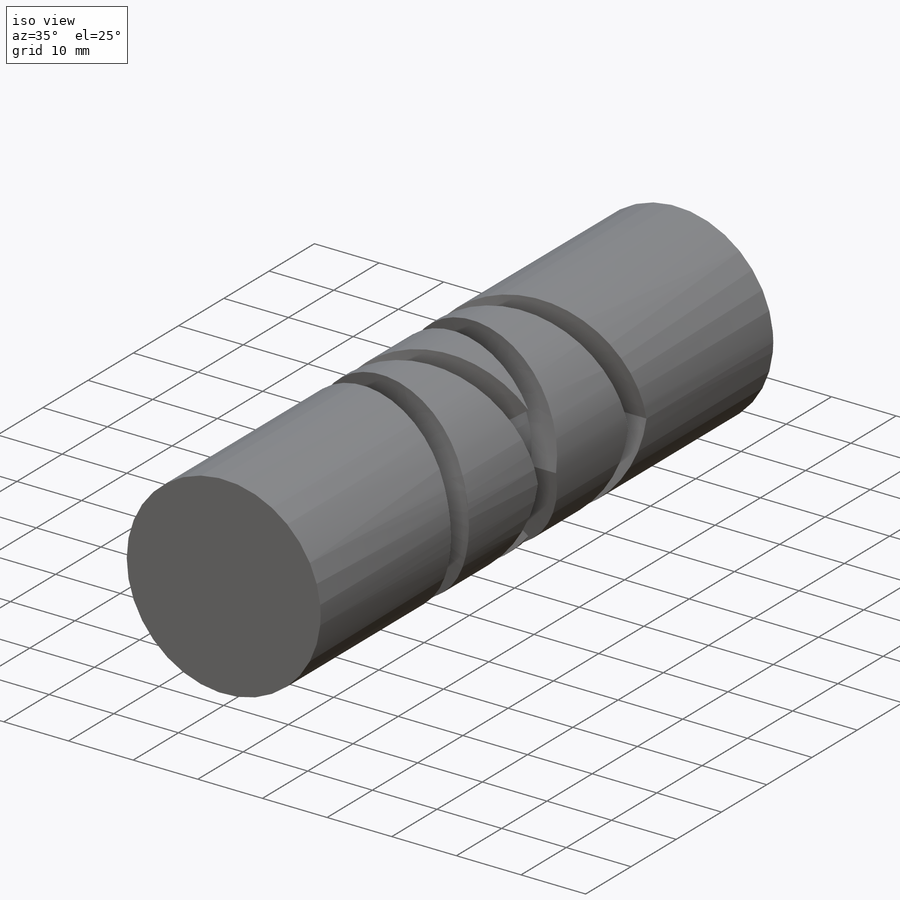
[diagram: iso view]
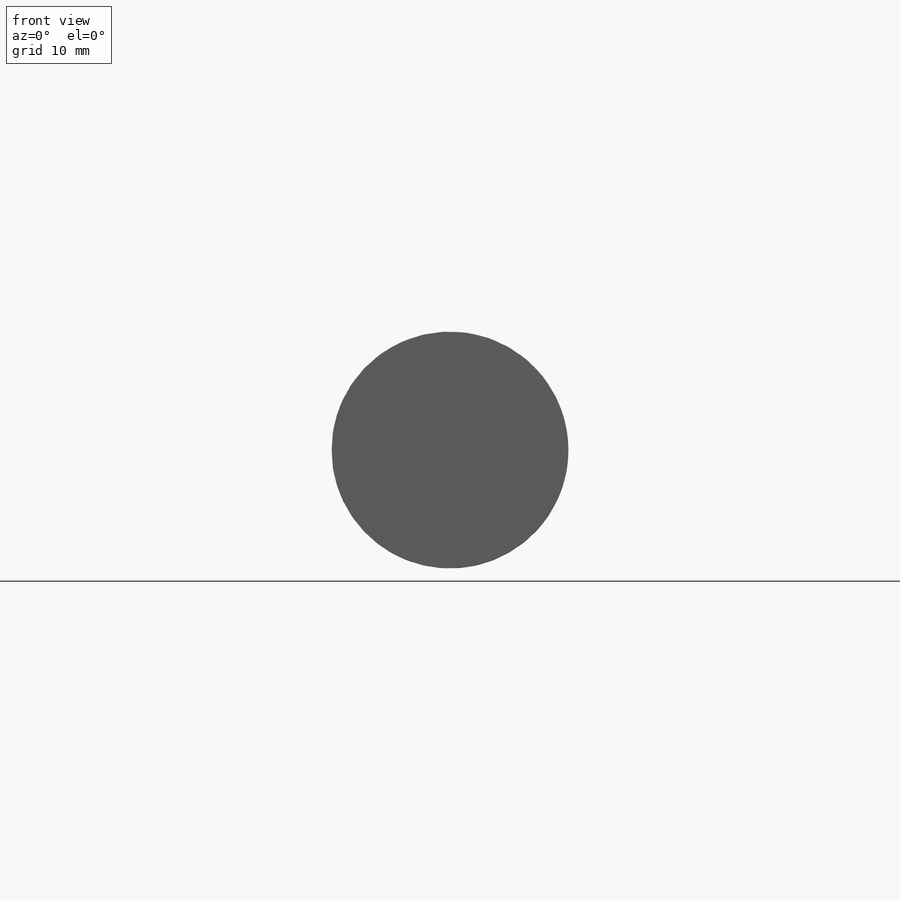
[diagram: front view]
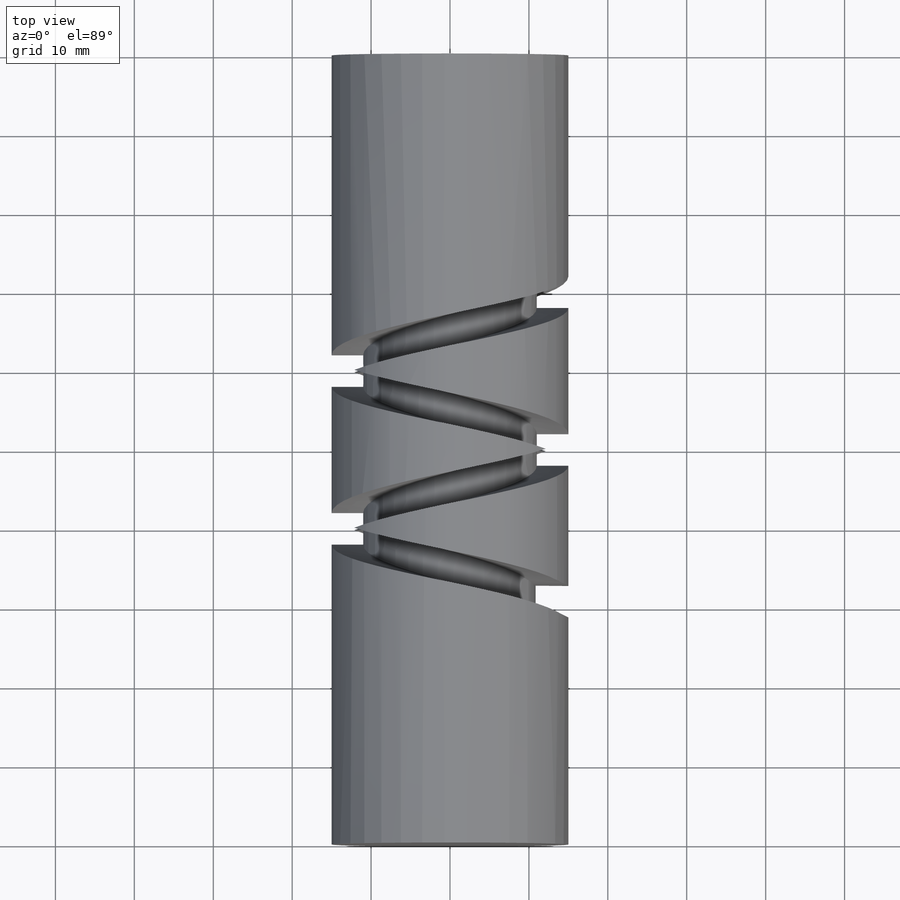
[diagram: top view]
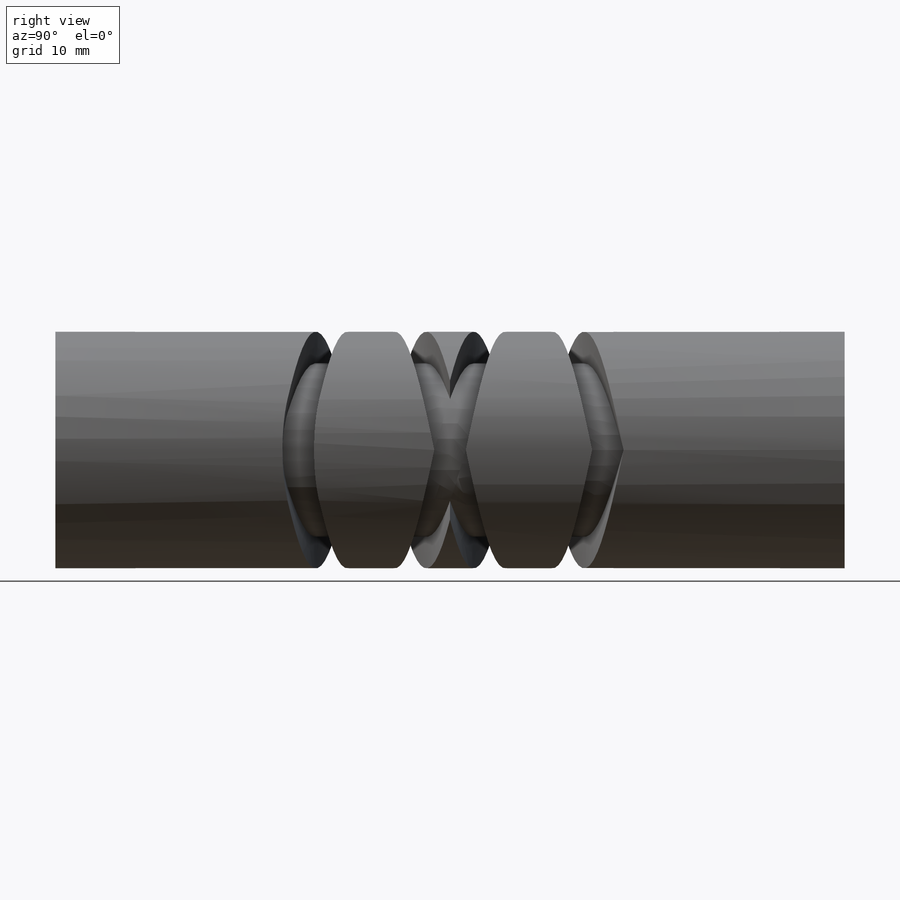
[diagram: right view]
SOLIDWORKS PART (.sldprt)
format: sldprt  version: not decoded by parser v0  size: 505,856 bytes
history: native  units: mm
features: plane x7, sketch x6, boolean_combine x2, material x1, extrude x1, helix x1, sweep x1, surface_op x1, mirror x1 (+9 scaffold rows collapsed)
feature tree (30):
  scaffold x9  (default folders/planes/origin — collapsed)
  material  "Material <nicht festgelegt>"
  plane  "Ebene vorne"
  plane  "Ebene oben"
  plane  "Ebene rechts"
  sketch  "Skizze1"  dims[D1=30.0mm]
  extrude  "Aufsatz-Linear austragen1"  Depth=100mm
  plane  "Ebene1"  Offset=0mm
  plane  "Ebene2"  Offset=0mm
  plane  "Ebene3"  Offset=30mm
  sketch  "Skizze4"  dims[D1=30.0mm]
  helix  "Spirale/Helix2"  Pitch=40mm
  sketch  "Skizze6"  dims[c1.D1=4.0mm c1.D2=4.0mm c2.D1=28.0mm c2.D2=4.0mm]
  sweep  "Austragung1"
  sketch  "Skizze7"
  surface_op  "Oberfläche-Linear austragen1"
  mirror  "Spiegeln2"
  plane  "Ebene4"
  sketch  "Skizze9"  dims[D1=0.0mm]
  sketch  "Skizze10"  dims[c1.D1=0.0mm c2.D1=0.0mm c3.D1=2.0mm c3.D2=2.0mm]
  boolean_combine  "Kombinieren2"
  boolean_combine  "Oberflächenschnitt2"
decode coverage: 7 of 13 modeling features carry decoded parameters
note: suppression state not decoded; provenance and decode notes live in map.json
